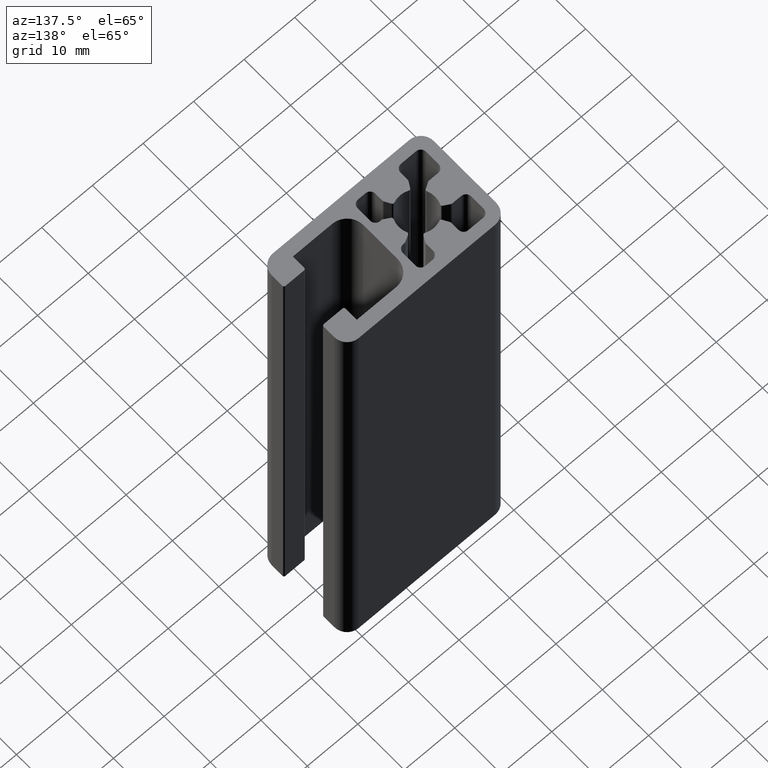
[diagram: clean part render]
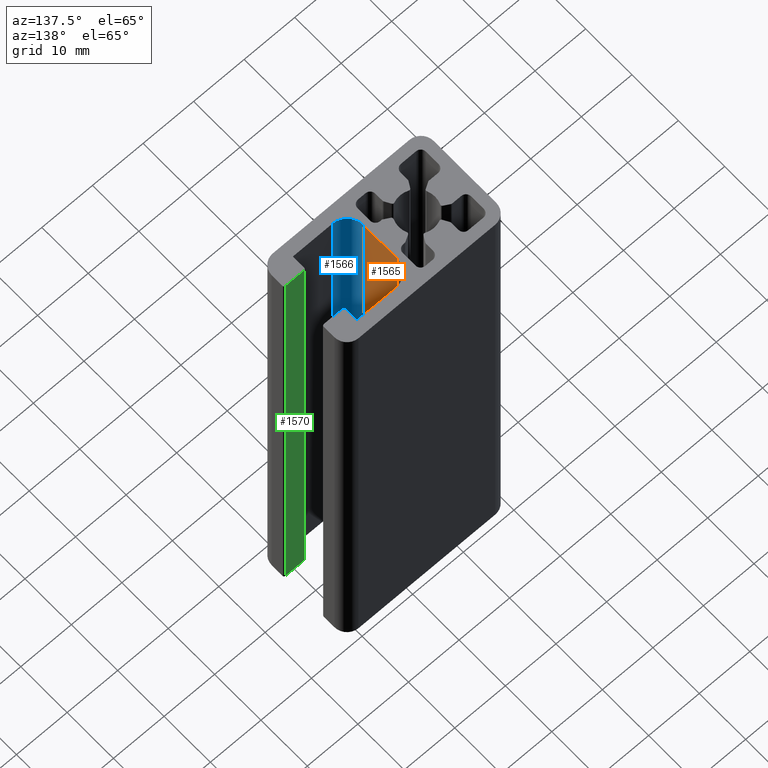
[diagram: same view with three faces highlighted in distinct colors, each labeled with its STEP entity id]
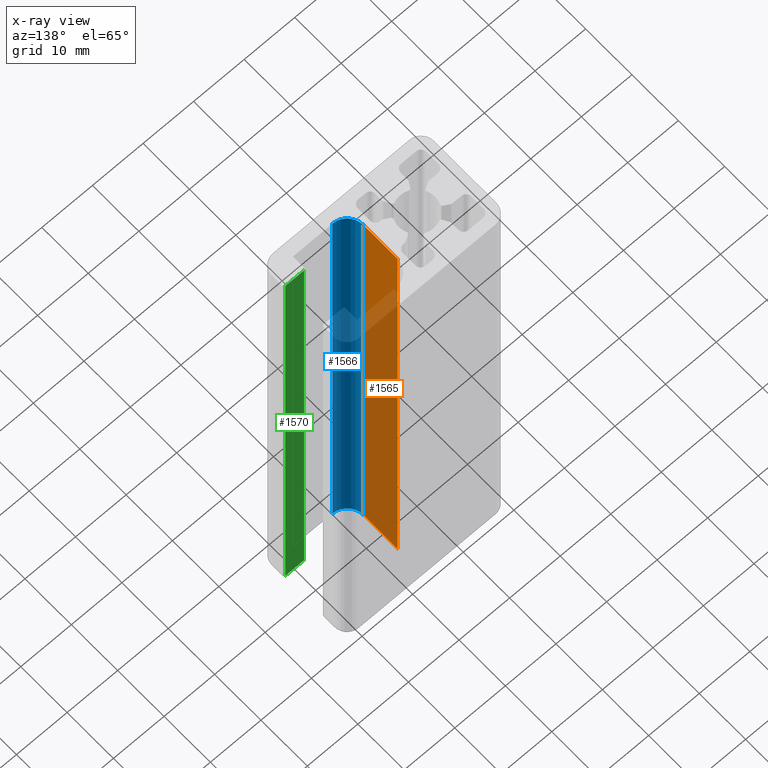
[diagram: x-ray of the same camera — body ghosted, the three highlighted faces saturated]
A machine part, auxiliary view with three faces highlighted in distinct colors.
The next image is the same camera in x-ray (body ghosted, the three faces saturated) — at least one of them is partly hidden behind the body in this view.
Their STEP definitions:

[orange] entity #1565 — the highlighted planar face has unit normal (-1, 0, 0).
#207=FACE_OUTER_BOUND('',#288,.T.);
#288=EDGE_LOOP('',(#1325,#1326,#1327,#1328));
#412=LINE('',#2567,#562);
#432=LINE('',#2639,#582);
#433=LINE('',#2643,#583);
#434=LINE('',#2644,#584);
#562=VECTOR('',#2080,7.4);
#582=VECTOR('',#2158,100.);
#583=VECTOR('',#2163,100.);
#584=VECTOR('',#2164,7.4);
#723=VERTEX_POINT('',#2564);
#724=VERTEX_POINT('',#2566);
#747=VERTEX_POINT('',#2638);
#748=VERTEX_POINT('',#2642);
#927=EDGE_CURVE('',#723,#724,#412,.T.);
#965=EDGE_CURVE('',#747,#724,#432,.T.);
#967=EDGE_CURVE('',#748,#723,#433,.T.);
#968=EDGE_CURVE('',#747,#748,#434,.T.);
#1325=ORIENTED_EDGE('',*,*,#927,.F.);
#1326=ORIENTED_EDGE('',*,*,#967,.F.);
#1327=ORIENTED_EDGE('',*,*,#968,.F.);
#1328=ORIENTED_EDGE('',*,*,#965,.T.);
#1491=PLANE('',#1725);
#1565=ADVANCED_FACE('',(#207),#1491,.F.);
#1725=AXIS2_PLACEMENT_3D('',#2641,#2161,#2162);
#2080=DIRECTION('',(1.73119776772293E-12,1.,0.));
#2158=DIRECTION('',(0.,0.,1.));
#2161=DIRECTION('center_axis',(-1.,1.73119776772293E-12,0.));
#2162=DIRECTION('ref_axis',(0.,0.,1.));
#2163=DIRECTION('',(0.,0.,1.));
#2164=DIRECTION('',(-1.73119776772293E-12,-1.,0.));
#2564=CARTESIAN_POINT('',(7.2,-3.7,100.));
#2566=CARTESIAN_POINT('',(7.20000000001281,3.7,100.));
#2567=CARTESIAN_POINT('',(7.2000000000032,-1.85000000000061,100.));
#2638=CARTESIAN_POINT('',(7.20000000001281,3.7,0.));
#2639=CARTESIAN_POINT('',(7.20000000001281,3.7,0.));
#2641=CARTESIAN_POINT('Origin',(7.2,-3.7,0.));
#2642=CARTESIAN_POINT('',(7.2,-3.7,0.));
#2643=CARTESIAN_POINT('',(7.2,-3.7,0.));
#2644=CARTESIAN_POINT('',(7.2000000000032,-1.85000000000061,0.));

[blue] entity #1566 — the highlighted cylindrical surface (edge-blend (fillet) strip) has radius 3.2 mm, axis along (0, 0, 1).
#75=CIRCLE('',#1694,3.19999999999361);
#95=CIRCLE('',#1727,3.19999999999361);
#137=CYLINDRICAL_SURFACE('',#1726,3.19999999999361);
#208=FACE_OUTER_BOUND('',#289,.T.);
#289=EDGE_LOOP('',(#1329,#1330,#1331,#1332));
#433=LINE('',#2643,#583);
#435=LINE('',#2647,#585);
#583=VECTOR('',#2163,100.);
#585=VECTOR('',#2167,100.);
#722=VERTEX_POINT('',#2562);
#723=VERTEX_POINT('',#2564);
#748=VERTEX_POINT('',#2642);
#749=VERTEX_POINT('',#2646);
#926=EDGE_CURVE('',#722,#723,#75,.T.);
#967=EDGE_CURVE('',#748,#723,#433,.T.);
#969=EDGE_CURVE('',#749,#722,#435,.T.);
#970=EDGE_CURVE('',#748,#749,#95,.T.);
#1329=ORIENTED_EDGE('',*,*,#926,.F.);
#1330=ORIENTED_EDGE('',*,*,#969,.F.);
#1331=ORIENTED_EDGE('',*,*,#970,.F.);
#1332=ORIENTED_EDGE('',*,*,#967,.T.);
#1566=ADVANCED_FACE('',(#208),#137,.F.);
#1694=AXIS2_PLACEMENT_3D('',#2565,#2078,#2079);
#1726=AXIS2_PLACEMENT_3D('',#2645,#2165,#2166);
#1727=AXIS2_PLACEMENT_3D('',#2648,#2168,#2169);
#2078=DIRECTION('center_axis',(0.,0.,-1.));
#2079=DIRECTION('ref_axis',(-1.,-1.99701366554849E-12,0.));
#2163=DIRECTION('',(0.,0.,1.));
#2165=DIRECTION('center_axis',(0.,0.,1.));
#2166=DIRECTION('ref_axis',(-1.,-1.99701366554849E-12,0.));
#2167=DIRECTION('',(0.,0.,1.));
#2168=DIRECTION('center_axis',(0.,0.,1.));
#2169=DIRECTION('ref_axis',(-1.,-1.99701366554849E-12,0.));
#2562=CARTESIAN_POINT('',(10.4,-6.89999999998722,100.));
#2564=CARTESIAN_POINT('',(7.2,-3.7,100.));
#2565=CARTESIAN_POINT('Origin',(10.3999999999936,-3.69999999999361,100.));
#2642=CARTESIAN_POINT('',(7.2,-3.7,0.));
#2643=CARTESIAN_POINT('',(7.2,-3.7,0.));
#2645=CARTESIAN_POINT('Origin',(10.3999999999936,-3.69999999999361,0.));
#2646=CARTESIAN_POINT('',(10.4,-6.89999999998722,0.));
#2647=CARTESIAN_POINT('',(10.4,-6.89999999998722,0.));
#2648=CARTESIAN_POINT('Origin',(10.3999999999936,-3.69999999999361,0.));

[green] entity #1570 — the highlighted planar face has unit normal (0, -1, 0).
#212=FACE_OUTER_BOUND('',#293,.T.);
#293=EDGE_LOOP('',(#1345,#1346,#1347,#1348));
#409=LINE('',#2557,#559);
#422=LINE('',#2614,#572);
#440=LINE('',#2659,#590);
#441=LINE('',#2662,#591);
#559=VECTOR('',#2073,3.7);
#572=VECTOR('',#2132,100.);
#590=VECTOR('',#2180,100.);
#591=VECTOR('',#2185,3.7);
#718=VERTEX_POINT('',#2554);
#719=VERTEX_POINT('',#2556);
#740=VERTEX_POINT('',#2612);
#752=VERTEX_POINT('',#2658);
#922=EDGE_CURVE('',#718,#719,#409,.T.);
#953=EDGE_CURVE('',#740,#718,#422,.T.);
#975=EDGE_CURVE('',#752,#719,#440,.T.);
#977=EDGE_CURVE('',#752,#740,#441,.T.);
#1345=ORIENTED_EDGE('',*,*,#922,.F.);
#1346=ORIENTED_EDGE('',*,*,#953,.F.);
#1347=ORIENTED_EDGE('',*,*,#977,.F.);
#1348=ORIENTED_EDGE('',*,*,#975,.T.);
#1494=PLANE('',#1732);
#1570=ADVANCED_FACE('',(#212),#1494,.F.);
#1732=AXIS2_PLACEMENT_3D('',#2661,#2183,#2184);
#2073=DIRECTION('',(-1.,-3.05311331771918E-13,0.));
#2132=DIRECTION('',(0.,0.,1.));
#2180=DIRECTION('',(0.,0.,1.));
#2183=DIRECTION('center_axis',(3.05311331771918E-13,-1.,0.));
#2184=DIRECTION('ref_axis',(0.,0.,-1.));
#2185=DIRECTION('',(1.,3.05311331771918E-13,0.));
#2554=CARTESIAN_POINT('',(22.2,-4.15000000000001,100.));
#2556=CARTESIAN_POINT('',(18.5,-4.15000000000114,100.));
#2557=CARTESIAN_POINT('',(14.3500000000006,-4.1500000000024,100.));
#2612=CARTESIAN_POINT('',(22.2,-4.15000000000001,0.));
#2614=CARTESIAN_POINT('',(22.2,-4.15000000000001,0.));
#2658=CARTESIAN_POINT('',(18.5,-4.15000000000114,0.));
#2659=CARTESIAN_POINT('',(18.5,-4.15000000000114,0.));
#2661=CARTESIAN_POINT('Origin',(22.2,-4.15000000000001,0.));
#2662=CARTESIAN_POINT('',(14.3500000000006,-4.1500000000024,0.));